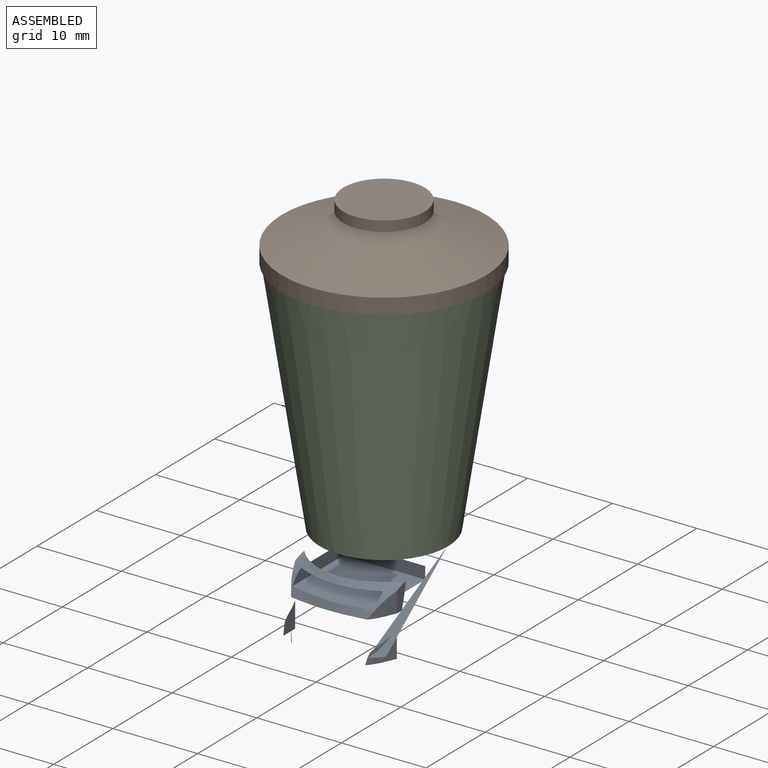
[diagram: assembled view]
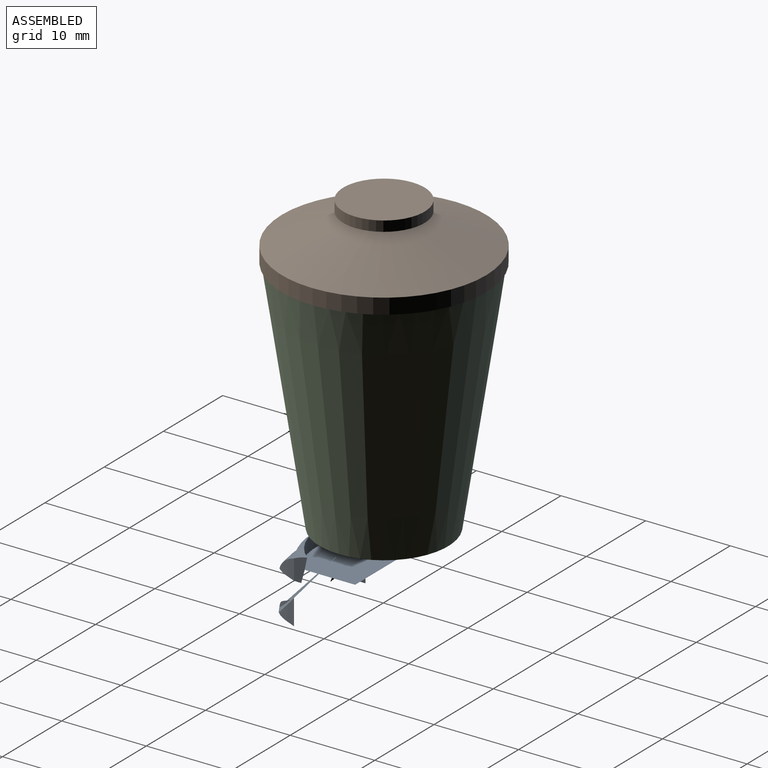
[diagram: assembled view, second angle]
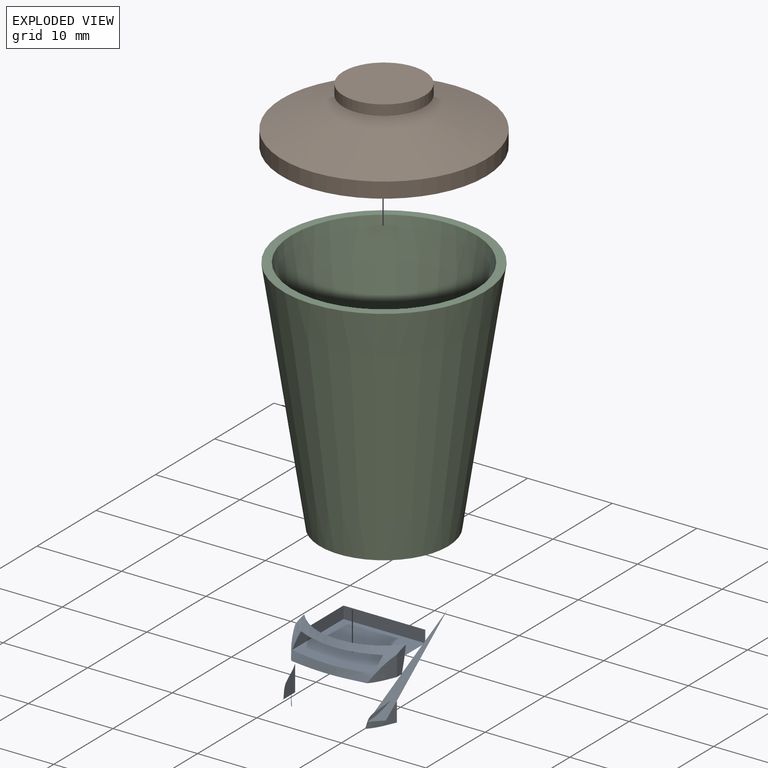
[diagram: exploded view]
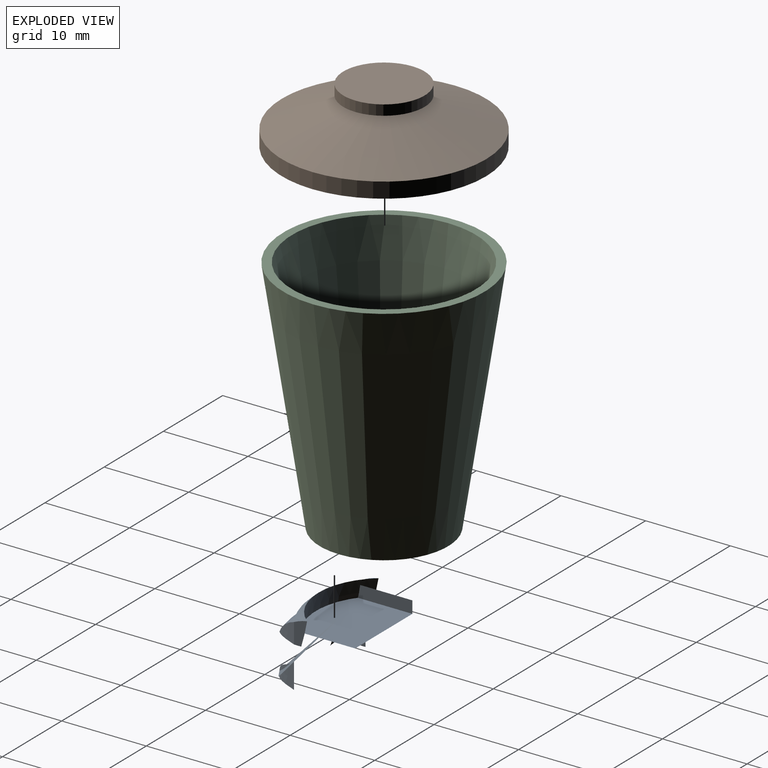
[diagram: exploded view, second angle]
ASSEMBLY  parts=3 mates=2
PART A: 18 faces, bbox 21.5x21.5x10.9 mm
  f0: plane 20.64x20.64mm, normal (0,0,-1), area 332mm2, adj f1,f7,f8,f10,f11
  f1: revolved ~20.64x20.64mm, area 526.9mm2, adj f0,f2,f3,f4,f5,f7,f8,f10
  f2: plane 12.71x4.74mm, normal (0,0,-1), area 20.8mm2, adj f1,f4,f5,f6,f9,f12
  f3: plane 15x15mm, normal (0,0,1), area 176.7mm2, adj f1
  f4: plane 3.04x1.67mm, normal (-1,0,0), area 3.2mm2, adj f1,f2,f6,f12
  f5: plane 3.04x1.68mm, normal (1,0,0), area 3.2mm2, adj f1,f2,f9,f12
  f6: extruded ~2.84x2.41mm, area 4.1mm2, adj f2,f4,f12
  f7: plane 3.82x2.75mm, normal (1,0,0), area 4mm2, adj f0,f1,f8
  f8: extruded ~3.05x2.98mm, area 5.5mm2, adj f0,f1,f7
  f9: extruded ~2.82x2.41mm, area 4mm2, adj f2,f5,f12
  f10: plane 3.8x2.73mm, normal (-1,0,0), area 4mm2, adj f0,f1,f11
  f11: extruded ~3.04x2.96mm, area 5.4mm2, adj f0,f1,f10
  f12: bspline ~12.62x5.96mm, area 25.3mm2, adj f1,f2,f4,f5,f6,f9,f13,f14
  f13: plane 10.55x9.24mm, normal (0,0,-1), area 76.9mm2, adj f12,f14,f16,f17
  f14: plane 8.76x1.54mm, normal (1,0,0), area 11.5mm2, adj f12,f13,f15,f17
  f15: plane 10.52x10.17mm, normal (0,0,1), area 87.8mm2, adj f12,f14,f16,f17
  f16: plane 8.73x1.53mm, normal (-1,0,0), area 11.5mm2, adj f12,f13,f15,f17
  f17: plane 9.67x1.44mm, normal (0,-1,0), area 13.9mm2, adj f13,f14,f15,f16
PART B: 7 faces, bbox 24.2x24.2x6.7 mm
  f0: plane 24.16x24.16mm, normal (0,0,-1), area 458.4mm2, adj f6
  f1: plane 9.62x9.62mm, normal (0,0,1), area 72.6mm2, adj f2
  f2: cylinder r=4.81mm len=9.62mm, axis (0,0,-1), area 36.5mm2, adj f1,f3
  f3: plane 9.62x9.62mm, normal (0,0,-1), area 48.5mm2, adj f2,f4
  f4: cylinder r=2.77mm len=5.54mm, axis (0,0,-1), area 7.2mm2, adj f3,f5
  f5: cone r=2.77mm half-angle=70.9deg, axis (0,0,-1), area 459.7mm2, adj f4,f6
  f6: cylinder r=12.08mm len=24.16mm, axis (0,0,-1), area 138.5mm2, adj f0,f5
PART C: 5 faces, bbox 23.8x23.8x28.3 mm
  f0: cone r=7.6mm half-angle=8.6deg, axis (0,0,1), area 1753mm2, adj f1,f2
  f1: plane 15.19x15.19mm, normal (0,0,-1), area 181.2mm2, adj f0
  f2: plane 23.77x23.77mm, normal (0,0,1), area 72.3mm2, adj f0,f3
  f3: cone r=6.61mm half-angle=8.6deg, axis (0,0,1), area 1528.6mm2, adj f2,f4
  f4: plane 13.47x13.47mm, normal (0,0,1), area 142.5mm2, adj f3
PLACE A t=(-23.24,41.82,-43.03)mm
PLACE B t=(-23.24,41.82,-46.99)mm
PLACE C t=(-23.24,41.82,-45.04)mm
MATE fastened A.f3 <-> C.f0  axis (0,0,1) through (-23.24,41.82,-33.02)mm
MATE fastened C.f0 <-> B.f2  axis (0,0,1) through (-23.24,41.82,-4.7)mm
